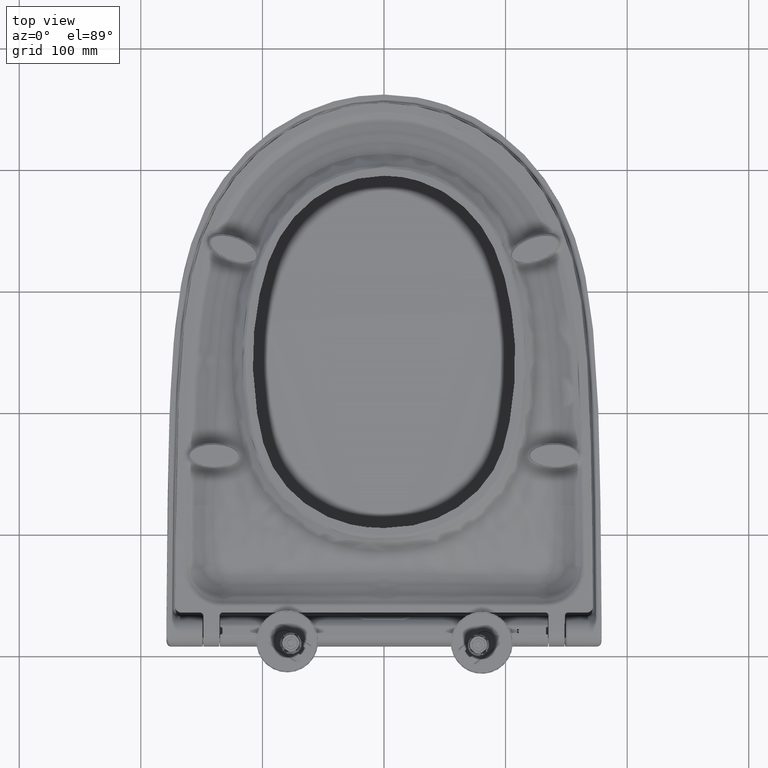
[diagram: clean part render]
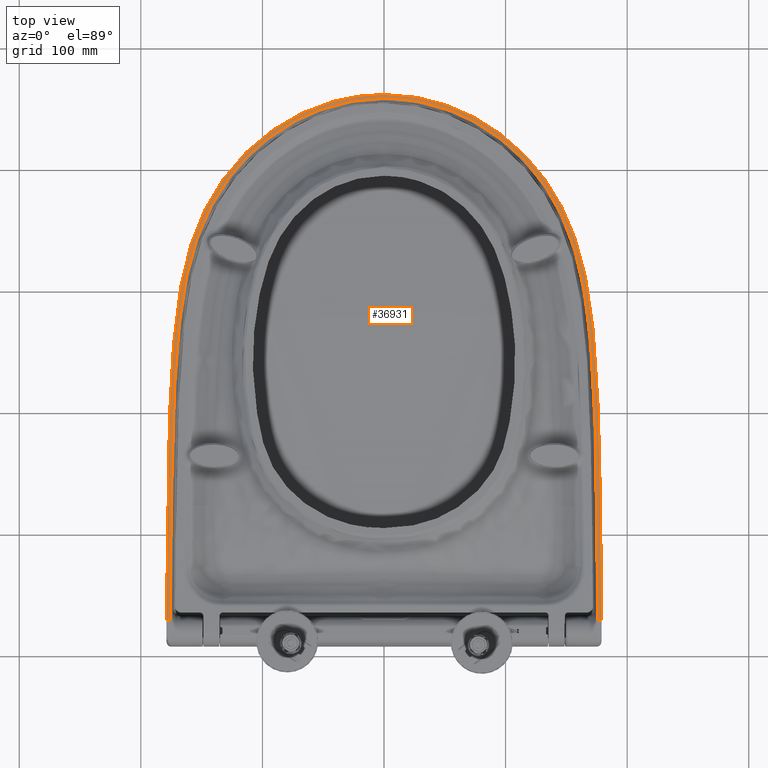
[diagram: same view with one face highlighted and labeled with its STEP entity id]
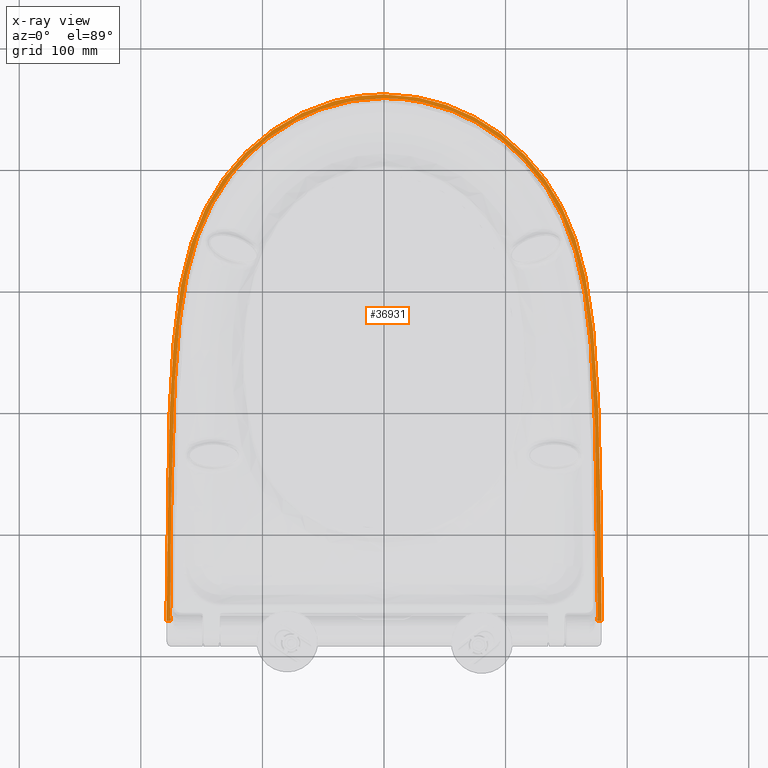
[diagram: x-ray of the same camera — body ghosted, the highlighted face saturated]
A machine part, top view. The second image highlights one B-rep face of the part: STEP entity #36931.
The next image is the same camera in x-ray: the body ghosted, the highlighted face saturated — about 0% of this face is hidden behind the body in this view.
In plain terms, the highlighted planar face has unit normal (0, 0, -1).
Its self-contained STEP definition (entity closure, byte-faithful):
#33936=CARTESIAN_POINT('',(3.056754644032E1,-2.E0,-1.789687411330E2));
#33964=CARTESIAN_POINT('',(3.056754644031E1,-1.999999876984E0,
1.789687411308E2));
#33965=CARTESIAN_POINT('',(4.751824236054E1,-1.999999876984E0,
1.788973435934E2));
#33966=CARTESIAN_POINT('',(7.982374964766E1,-2.000000057092E0,
1.786630189628E2));
#33967=CARTESIAN_POINT('',(1.231382903773E2,-1.999999984702E0,
1.781425289772E2));
#33968=CARTESIAN_POINT('',(1.623790255184E2,-2.000000004099E0,
1.775154749295E2));
#33969=CARTESIAN_POINT('',(1.975833120235E2,-1.999999998902E0,
1.765745074952E2));
#33970=CARTESIAN_POINT('',(2.287817076286E2,-2.000000000294E0,
1.752034739058E2));
#33971=CARTESIAN_POINT('',(2.563481842830E2,-1.999999999921E0,
1.733495062176E2));
#33972=CARTESIAN_POINT('',(2.805533375280E2,-2.000000000021E0,
1.709548315538E2));
#33973=CARTESIAN_POINT('',(3.017245035490E2,-1.999999999994E0,
1.679811250958E2));
#33974=CARTESIAN_POINT('',(3.200158636192E2,-2.000000000002E0,
1.643466256910E2));
#33975=CARTESIAN_POINT('',(3.360250831624E2,-2.E0,1.601052141601E2));
#33976=CARTESIAN_POINT('',(3.502005047276E2,-2.E0,1.553460563256E2));
#33977=CARTESIAN_POINT('',(3.628803505777E2,-2.E0,1.501268057971E2));
#33978=CARTESIAN_POINT('',(3.744625545584E2,-2.E0,1.444031203151E2));
#33979=CARTESIAN_POINT('',(3.852499920167E2,-2.E0,1.380681694013E2));
#33980=CARTESIAN_POINT('',(3.954623039032E2,-2.E0,1.310567742935E2));
#33981=CARTESIAN_POINT('',(4.051374434337E2,-2.E0,1.233588571963E2));
#33982=CARTESIAN_POINT('',(4.141890334608E2,-2.E0,1.150498269234E2));
#33983=CARTESIAN_POINT('',(4.225634722963E2,-2.E0,1.061908424640E2));
#33984=CARTESIAN_POINT('',(4.301857878542E2,-2.E0,9.688341505055E1));
#33985=CARTESIAN_POINT('',(4.370614190218E2,-2.E0,8.713908960612E1));
#33986=CARTESIAN_POINT('',(4.431885329650E2,-2.E0,7.697429140178E1));
#33987=CARTESIAN_POINT('',(4.485374313563E2,-2.E0,6.646963696604E1));
#33988=CARTESIAN_POINT('',(4.530740319463E2,-2.E0,5.572467646762E1));
#33989=CARTESIAN_POINT('',(4.567908618289E2,-2.E0,4.479078328583E1));
#33990=CARTESIAN_POINT('',(4.596687235733E2,-2.E0,3.374135779699E1));
#33991=CARTESIAN_POINT('',(4.617172191893E2,-2.E0,2.258099167195E1));
#33992=CARTESIAN_POINT('',(4.629483596686E2,-2.E0,1.133712993628E1));
#33993=CARTESIAN_POINT('',(4.632249101299E2,-2.E0,3.788044564754E0));
#33994=CARTESIAN_POINT('',(4.632249101299E2,-2.E0,-5.737467766091E-13));
#33996=CARTESIAN_POINT('',(4.632249101299E2,-2.E0,-5.737467766091E-13));
#33997=CARTESIAN_POINT('',(4.632249101299E2,-2.E0,-3.783731884549E0));
#33998=CARTESIAN_POINT('',(4.629490636818E2,-2.E0,-1.132486181269E1));
#33999=CARTESIAN_POINT('',(4.617197205577E2,-2.E0,-2.256228227576E1));
#34000=CARTESIAN_POINT('',(4.596751652908E2,-2.E0,-3.371125185441E1));
#34001=CARTESIAN_POINT('',(4.568013170959E2,-2.E0,-4.475521994574E1));
#34002=CARTESIAN_POINT('',(4.530910966852E2,-2.E0,-5.567918938493E1));
#34003=CARTESIAN_POINT('',(4.485603400942E2,-2.E0,-6.642010797814E1));
#34004=CARTESIAN_POINT('',(4.432181097498E2,-2.E0,-7.692051373703E1));
#34005=CARTESIAN_POINT('',(4.371012652394E2,-2.E0,-8.707748949472E1));
#34006=CARTESIAN_POINT('',(4.302372323396E2,-2.E0,-9.681528501873E1));
#34007=CARTESIAN_POINT('',(4.226273721028E2,-2.E0,-1.061180467383E2));
#34008=CARTESIAN_POINT('',(4.142605369899E2,-2.E0,-1.149789636397E2));
#34009=CARTESIAN_POINT('',(4.052330089810E2,-2.E0,-1.232759839742E2));
#34010=CARTESIAN_POINT('',(3.955897349354E2,-2.E0,-1.309619512757E2));
#34011=CARTESIAN_POINT('',(3.853797773589E2,-2.E0,-1.379862054836E2));
#34012=CARTESIAN_POINT('',(3.745637331013E2,-2.E0,-1.443501318870E2));
#34013=CARTESIAN_POINT('',(3.629292035746E2,-2.E0,-1.501060806650E2));
#34014=CARTESIAN_POINT('',(3.502320787749E2,-2.E0,-1.553338694844E2));
#34015=CARTESIAN_POINT('',(3.360903892635E2,-2.E0,-1.600853089013E2));
#34016=CARTESIAN_POINT('',(3.200734135622E2,-2.E0,-1.643339195783E2));
#34017=CARTESIAN_POINT('',(3.018006345896E2,-2.E0,-1.679664906924E2));
#34018=CARTESIAN_POINT('',(2.807882416304E2,-2.E0,-1.709258656201E2));
#34019=CARTESIAN_POINT('',(2.566650431204E2,-2.E0,-1.733227609417E2));
#34020=CARTESIAN_POINT('',(2.292047741147E2,-2.E0,-1.751803563229E2));
#34021=CARTESIAN_POINT('',(1.980448351373E2,-2.E0,-1.765584792121E2));
#34022=CARTESIAN_POINT('',(1.628435603123E2,-2.E0,-1.775066953853E2));
#34023=CARTESIAN_POINT('',(1.234639547078E2,-2.E0,-1.781382615170E2));
#34024=CARTESIAN_POINT('',(7.996205219744E1,-2.E0,-1.786619601874E2));
#34025=CARTESIAN_POINT('',(4.756268886030E1,-2.E0,-1.788971563837E2));
#34026=CARTESIAN_POINT('',(3.056754644032E1,-2.E0,-1.789687411330E2));
#34028=CARTESIAN_POINT('',(3.451250610645E1,-1.999999847830E0,
-1.759157444982E2));
#34029=CARTESIAN_POINT('',(5.603016614831E1,-1.999999454225E0,
-1.758148253028E2));
#34030=CARTESIAN_POINT('',(9.906404052176E1,-2.000000257092E0,
-1.754428195491E2));
#34031=CARTESIAN_POINT('',(1.636106181641E2,-1.999999928812E0,
-1.745618042228E2));
#34032=CARTESIAN_POINT('',(2.173986917492E2,-2.000000009117E0,
-1.729512779550E2));
#34033=CARTESIAN_POINT('',(2.603726866201E2,-1.999999997824E0,
-1.700308426649E2));
#34034=CARTESIAN_POINT('',(3.031953565705E2,-2.000000003948E0,
-1.654427756247E2));
#34035=CARTESIAN_POINT('',(3.456129429261E2,-1.999999980432E0,
-1.558212459678E2));
#34036=CARTESIAN_POINT('',(3.843046099084E2,-2.000000033165E0,
-1.361228300386E2));
#34037=CARTESIAN_POINT('',(4.185472785009E2,-1.999999820581E0,
-1.094636874263E2));
#34038=CARTESIAN_POINT('',(4.507367728551E2,-2.000001447209E0,
-6.478207059977E1));
#34039=CARTESIAN_POINT('',(4.601895506809E2,-1.999996960980E0,
-2.161390210455E1));
#34040=CARTESIAN_POINT('',(4.601895227597E2,-2.000000094245E0,
1.003179658585E-9));
#34042=CARTESIAN_POINT('',(4.601895227597E2,-2.000000094245E0,
1.003179658585E-9));
#34043=CARTESIAN_POINT('',(4.601895506804E2,-1.999996960980E0,
2.161390210812E1));
#34044=CARTESIAN_POINT('',(4.507367728706E2,-2.000001447209E0,
6.478207060771E1));
#34045=CARTESIAN_POINT('',(4.185472785073E2,-1.999999820582E0,
1.094636874361E2));
#34046=CARTESIAN_POINT('',(3.843046099131E2,-2.000000033165E0,
1.361228300498E2));
#34047=CARTESIAN_POINT('',(3.456129429280E2,-1.999999980432E0,
1.558212459797E2));
#34048=CARTESIAN_POINT('',(3.031953565708E2,-2.000000003948E0,
1.654427756366E2));
#34049=CARTESIAN_POINT('',(2.603726866197E2,-1.999999997824E0,
1.700308426767E2));
#34050=CARTESIAN_POINT('',(2.173986917486E2,-2.000000009117E0,
1.729512779670E2));
#34051=CARTESIAN_POINT('',(1.636106181635E2,-1.999999928812E0,
1.745618042331E2));
#34052=CARTESIAN_POINT('',(9.906404052155E1,-2.000000257092E0,
1.754428195663E2));
#34053=CARTESIAN_POINT('',(5.603016614822E1,-1.999999454225E0,
1.758148253028E2));
#34054=CARTESIAN_POINT('',(3.451250610645E1,-1.999999847830E0,
1.759157444981E2));
#34056=CARTESIAN_POINT('',(3.451250610645E1,-1.999999847830E0,
1.759157444981E2));
#34057=CARTESIAN_POINT('',(3.411046733754E1,-1.999999284481E0,
1.759176411586E2));
#34058=CARTESIAN_POINT('',(3.328156217670E1,-1.999992042931E0,
1.758883202559E2));
#34059=CARTESIAN_POINT('',(3.190493484671E1,-2.000028923019E0,
1.757270191796E2));
#34060=CARTESIAN_POINT('',(3.101574184756E1,-1.999937817668E0,
1.755602348341E2));
#34061=CARTESIAN_POINT('',(3.056754678680E1,-1.999937761467E0,
1.754648805392E2));
#34066=CARTESIAN_POINT('',(3.056754673400E1,-1.999937761460E0,
-1.754648805287E2));
#34068=DIRECTION('',(-8.381641463233E-8,-1.776284713377E-5,-9.999999998422E-1));
#34069=VECTOR('',#34068,3.503860604849E0);
#34070=CARTESIAN_POINT('',(3.056754673400E1,-1.999937761460E0,
-1.754648805287E2));
#34071=LINE('',#34070,#34069);
#34105=CARTESIAN_POINT('',(3.451250610645E1,-1.999999847830E0,
-1.759157444982E2));
#34106=CARTESIAN_POINT('',(3.410985774473E1,-1.999999283627E0,
-1.759176440344E2));
#34107=CARTESIAN_POINT('',(3.328013980495E1,-1.999992043319E0,
-1.758882397440E2));
#34108=CARTESIAN_POINT('',(3.190352288539E1,-2.000028922944E0,
-1.757267666853E2));
#34109=CARTESIAN_POINT('',(3.101514043072E1,-1.999937817585E0,
-1.755601068822E2));
#34110=CARTESIAN_POINT('',(3.056754673400E1,-1.999937761460E0,
-1.754648805287E2));
#34190=DIRECTION('',(9.888701051157E-8,1.772773615581E-5,-9.999999998429E-1));
#34191=VECTOR('',#34190,3.503860592155E0);
#34192=CARTESIAN_POINT('',(3.056754644031E1,-1.999999876984E0,
1.789687411308E2));
#34193=LINE('',#34192,#34191);
#35453=CARTESIAN_POINT('',(4.632249101299E2,-2.E0,-5.737467766088E-13));
#35454=VERTEX_POINT('',#35453);
#35455=VERTEX_POINT('',#33964);
#35460=VERTEX_POINT('',#33936);
#35465=VERTEX_POINT('',#34066);
#35466=VERTEX_POINT('',#34105);
#35467=VERTEX_POINT('',#34040);
#35468=VERTEX_POINT('',#34054);
#35469=VERTEX_POINT('',#34061);
#36910=CARTESIAN_POINT('',(-2.E1,-2.E0,0.E0));
#36911=DIRECTION('',(0.E0,1.E0,0.E0));
#36912=DIRECTION('',(1.E0,0.E0,0.E0));
#36913=AXIS2_PLACEMENT_3D('',#36910,#36911,#36912);
#36914=PLANE('',#36913);
#36915=ORIENTED_EDGE('',*,*,#36897,.T.);
#36916=ORIENTED_EDGE('',*,*,#36834,.T.);
#36918=ORIENTED_EDGE('',*,*,#36917,.F.);
#36920=ORIENTED_EDGE('',*,*,#36919,.F.);
#36922=ORIENTED_EDGE('',*,*,#36921,.T.);
#36924=ORIENTED_EDGE('',*,*,#36923,.T.);
#36926=ORIENTED_EDGE('',*,*,#36925,.T.);
#36928=ORIENTED_EDGE('',*,*,#36927,.F.);
#36929=EDGE_LOOP('',(#36915,#36916,#36918,#36920,#36922,#36924,#36926,#36928));
#36930=FACE_OUTER_BOUND('',#36929,.F.);
#33995=B_SPLINE_CURVE_WITH_KNOTS('',3,(#33964,#33965,#33966,#33967,#33968,
#33969,#33970,#33971,#33972,#33973,#33974,#33975,#33976,#33977,#33978,#33979,
#33980,#33981,#33982,#33983,#33984,#33985,#33986,#33987,#33988,#33989,#33990,
#33991,#33992,#33993,#33994),.UNSPECIFIED.,.F.,.F.,(4,1,1,1,1,1,1,1,1,1,1,1,1,1,
1,1,1,1,1,1,1,1,1,1,1,1,1,1,4),(0.E0,3.571428571429E-2,7.142857142857E-2,
1.071428571429E-1,1.428571428571E-1,1.785714285714E-1,2.142857142857E-1,2.5E-1,
2.857142857143E-1,3.214285714286E-1,3.571428571429E-1,3.928571428571E-1,
4.285714285714E-1,4.642857142857E-1,5.E-1,5.357142857143E-1,5.714285714286E-1,
6.071428571429E-1,6.428571428571E-1,6.785714285714E-1,7.142857142857E-1,7.5E-1,
7.857142857143E-1,8.214285714286E-1,8.571428571429E-1,8.928571428571E-1,
9.285714285714E-1,9.642857142857E-1,1.E0),.UNSPECIFIED.);
#34027=B_SPLINE_CURVE_WITH_KNOTS('',3,(#33996,#33997,#33998,#33999,#34000,
#34001,#34002,#34003,#34004,#34005,#34006,#34007,#34008,#34009,#34010,#34011,
#34012,#34013,#34014,#34015,#34016,#34017,#34018,#34019,#34020,#34021,#34022,
#34023,#34024,#34025,#34026),.UNSPECIFIED.,.F.,.F.,(4,1,1,1,1,1,1,1,1,1,1,1,1,1,
1,1,1,1,1,1,1,1,1,1,1,1,1,1,4),(0.E0,3.571428571429E-2,7.142857142857E-2,
1.071428571429E-1,1.428571428571E-1,1.785714285714E-1,2.142857142857E-1,2.5E-1,
2.857142857143E-1,3.214285714286E-1,3.571428571429E-1,3.928571428571E-1,
4.285714285714E-1,4.642857142857E-1,5.E-1,5.357142857143E-1,5.714285714286E-1,
6.071428571429E-1,6.428571428571E-1,6.785714285714E-1,7.142857142857E-1,7.5E-1,
7.857142857143E-1,8.214285714286E-1,8.571428571429E-1,8.928571428571E-1,
9.285714285714E-1,9.642857142857E-1,1.E0),.UNSPECIFIED.);
#34041=B_SPLINE_CURVE_WITH_KNOTS('',3,(#34028,#34029,#34030,#34031,#34032,
#34033,#34034,#34035,#34036,#34037,#34038,#34039,#34040),.UNSPECIFIED.,.F.,.F.,(
4,1,1,1,1,1,1,1,1,1,4),(0.E0,1.25E-1,2.5E-1,3.75E-1,4.375E-1,5.E-1,6.25E-1,
6.875E-1,7.5E-1,8.75E-1,1.E0),.UNSPECIFIED.);
#34055=B_SPLINE_CURVE_WITH_KNOTS('',3,(#34042,#34043,#34044,#34045,#34046,
#34047,#34048,#34049,#34050,#34051,#34052,#34053,#34054),.UNSPECIFIED.,.F.,.F.,(
4,1,1,1,1,1,1,1,1,1,4),(0.E0,1.25E-1,2.5E-1,3.125E-1,3.75E-1,5.E-1,5.625E-1,
6.25E-1,7.5E-1,8.75E-1,1.E0),.UNSPECIFIED.);
#34062=B_SPLINE_CURVE_WITH_KNOTS('',3,(#34056,#34057,#34058,#34059,#34060,
#34061),.UNSPECIFIED.,.F.,.F.,(4,1,1,4),(0.E0,3.333333333333E-1,
6.666666666667E-1,1.E0),.UNSPECIFIED.);
#34111=B_SPLINE_CURVE_WITH_KNOTS('',3,(#34105,#34106,#34107,#34108,#34109,
#34110),.UNSPECIFIED.,.F.,.F.,(4,1,1,4),(0.E0,3.333333333333E-1,
6.666666666667E-1,1.E0),.UNSPECIFIED.);
#36834=EDGE_CURVE('',#35454,#35460,#34027,.T.);
#36897=EDGE_CURVE('',#35455,#35454,#33995,.T.);
#36917=EDGE_CURVE('',#35465,#35460,#34071,.T.);
#36919=EDGE_CURVE('',#35466,#35465,#34111,.T.);
#36921=EDGE_CURVE('',#35466,#35467,#34041,.T.);
#36923=EDGE_CURVE('',#35467,#35468,#34055,.T.);
#36925=EDGE_CURVE('',#35468,#35469,#34062,.T.);
#36927=EDGE_CURVE('',#35455,#35469,#34193,.T.);
#36931=ADVANCED_FACE('',(#36930),#36914,.F.);